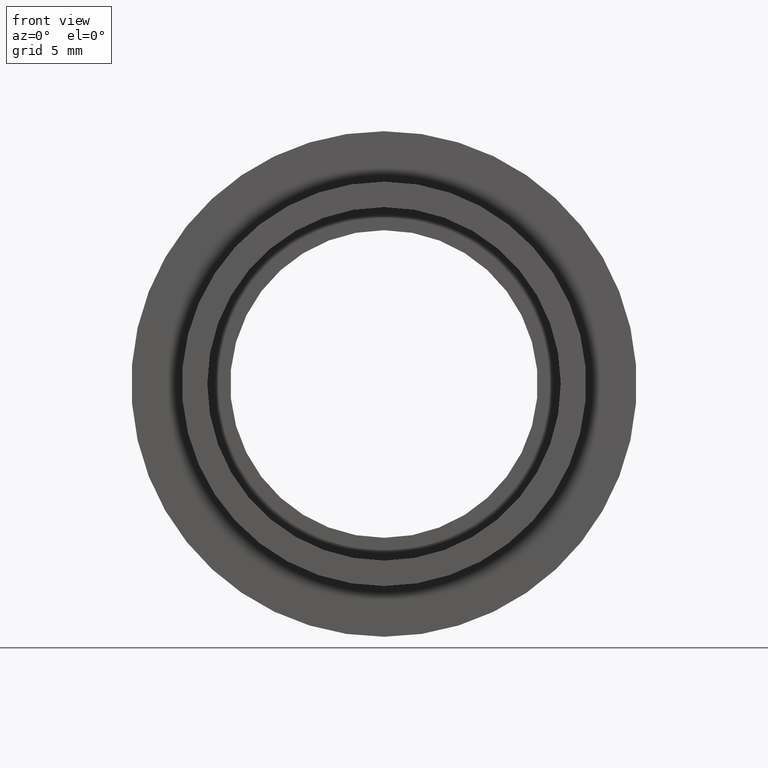
[diagram: clean part render]
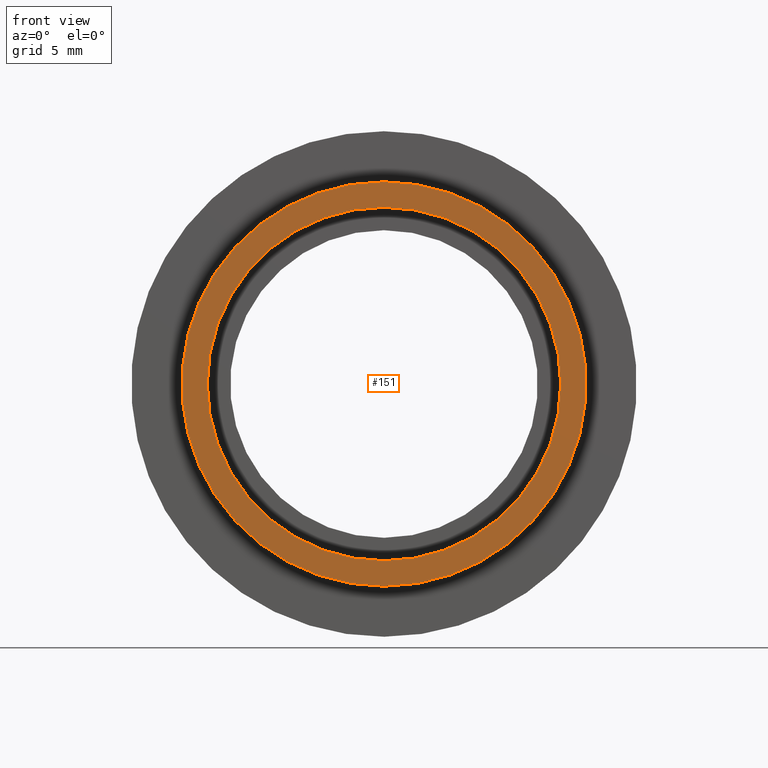
[diagram: same view with one face highlighted and labeled with its STEP entity id]
A machine part, front view. The second image highlights one B-rep face of the part: STEP entity #151.
In plain terms, the highlighted planar face has unit normal (-0, 1, 0).
Its self-contained STEP definition (entity closure, byte-faithful):
#18 = EDGE_LOOP ( 'NONE', ( #394, #447 ) ) ;
#20 = FACE_BOUND ( 'NONE', #18, .T. ) ;
#47 = CARTESIAN_POINT ( 'NONE',  ( 1.555301434917138400E-015, 0.0000000000000000000, -12.69999999999999900 ) ) ;
#96 = VERTEX_POINT ( 'NONE', #353 ) ;
#149 = AXIS2_PLACEMENT_3D ( 'NONE', #444, #592, #579 ) ;
#151 = ADVANCED_FACE ( 'NONE', ( #194, #20 ), #514, .F. ) ;
#153 = VERTEX_POINT ( 'NONE', #192 ) ;
#155 = CARTESIAN_POINT ( 'NONE',  ( 0.0000000000000000000, 0.0000000000000000000, 0.0000000000000000000 ) ) ;
#192 = CARTESIAN_POINT ( 'NONE',  ( 0.0000000000000000000, 0.0000000000000000000, 11.10000000000000100 ) ) ;
#193 = CIRCLE ( 'NONE', #532, 11.10000000000000100 ) ;
#194 = FACE_OUTER_BOUND ( 'NONE', #413, .T. ) ;
#211 = DIRECTION ( 'NONE',  ( -0.0000000000000000000, 1.000000000000000000, -0.0000000000000000000 ) ) ;
#242 = CIRCLE ( 'NONE', #610, 12.69999999999999900 ) ;
#258 = DIRECTION ( 'NONE',  ( -0.0000000000000000000, 1.000000000000000000, -0.0000000000000000000 ) ) ;
#273 = VERTEX_POINT ( 'NONE', #451 ) ;
#275 = EDGE_CURVE ( 'NONE', #273, #483, #242, .T. ) ;
#295 = CIRCLE ( 'NONE', #511, 11.10000000000000100 ) ;
#312 = EDGE_CURVE ( 'NONE', #96, #153, #295, .T. ) ;
#327 = ORIENTED_EDGE ( 'NONE', *, *, #275, .F. ) ;
#353 = CARTESIAN_POINT ( 'NONE',  ( 1.359357947053562400E-015, 0.0000000000000000000, -11.10000000000000100 ) ) ;
#394 = ORIENTED_EDGE ( 'NONE', *, *, #602, .T. ) ;
#413 = EDGE_LOOP ( 'NONE', ( #327, #456 ) ) ;
#444 = CARTESIAN_POINT ( 'NONE',  ( 12.69999999999999900, -3.918869757271530000E-016, 0.0000000000000000000 ) ) ;
#447 = ORIENTED_EDGE ( 'NONE', *, *, #312, .T. ) ;
#451 = CARTESIAN_POINT ( 'NONE',  ( 0.0000000000000000000, 0.0000000000000000000, 12.69999999999999900 ) ) ;
#453 = DIRECTION ( 'NONE',  ( -0.0000000000000000000, 1.000000000000000000, -0.0000000000000000000 ) ) ;
#456 = ORIENTED_EDGE ( 'NONE', *, *, #621, .F. ) ;
#483 = VERTEX_POINT ( 'NONE', #47 ) ;
#489 = DIRECTION ( 'NONE',  ( 0.0000000000000000000, 0.0000000000000000000, 1.000000000000000000 ) ) ;
#505 = DIRECTION ( 'NONE',  ( -0.0000000000000000000, 1.000000000000000000, -0.0000000000000000000 ) ) ;
#511 = AXIS2_PLACEMENT_3D ( 'NONE', #155, #453, #489 ) ;
#514 = PLANE ( 'NONE',  #149 ) ;
#516 = DIRECTION ( 'NONE',  ( 0.0000000000000000000, 0.0000000000000000000, 1.000000000000000000 ) ) ;
#532 = AXIS2_PLACEMENT_3D ( 'NONE', #556, #211, #516 ) ;
#538 = DIRECTION ( 'NONE',  ( 0.0000000000000000000, 0.0000000000000000000, 1.000000000000000000 ) ) ;
#539 = CARTESIAN_POINT ( 'NONE',  ( 0.0000000000000000000, 0.0000000000000000000, 0.0000000000000000000 ) ) ;
#554 = DIRECTION ( 'NONE',  ( 0.0000000000000000000, 0.0000000000000000000, 1.000000000000000000 ) ) ;
#556 = CARTESIAN_POINT ( 'NONE',  ( 0.0000000000000000000, 0.0000000000000000000, 0.0000000000000000000 ) ) ;
#565 = CIRCLE ( 'NONE', #590, 12.69999999999999900 ) ;
#579 = DIRECTION ( 'NONE',  ( 0.0000000000000000000, 0.0000000000000000000, 1.000000000000000000 ) ) ;
#590 = AXIS2_PLACEMENT_3D ( 'NONE', #599, #258, #554 ) ;
#592 = DIRECTION ( 'NONE',  ( -0.0000000000000000000, 1.000000000000000000, 0.0000000000000000000 ) ) ;
#599 = CARTESIAN_POINT ( 'NONE',  ( 0.0000000000000000000, 0.0000000000000000000, 0.0000000000000000000 ) ) ;
#602 = EDGE_CURVE ( 'NONE', #153, #96, #193, .T. ) ;
#610 = AXIS2_PLACEMENT_3D ( 'NONE', #539, #505, #538 ) ;
#621 = EDGE_CURVE ( 'NONE', #483, #273, #565, .T. ) ;